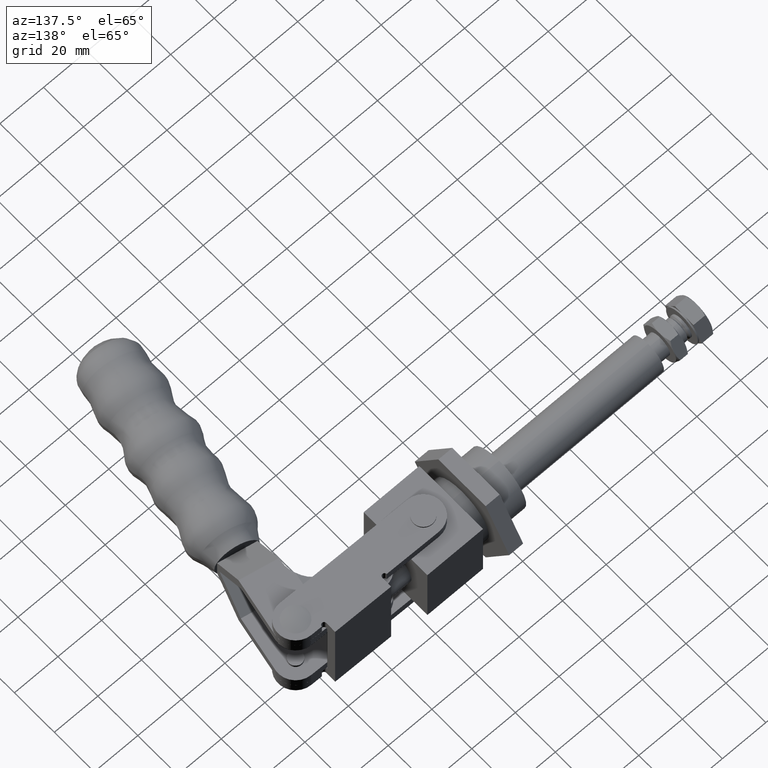
[diagram: clean part render]
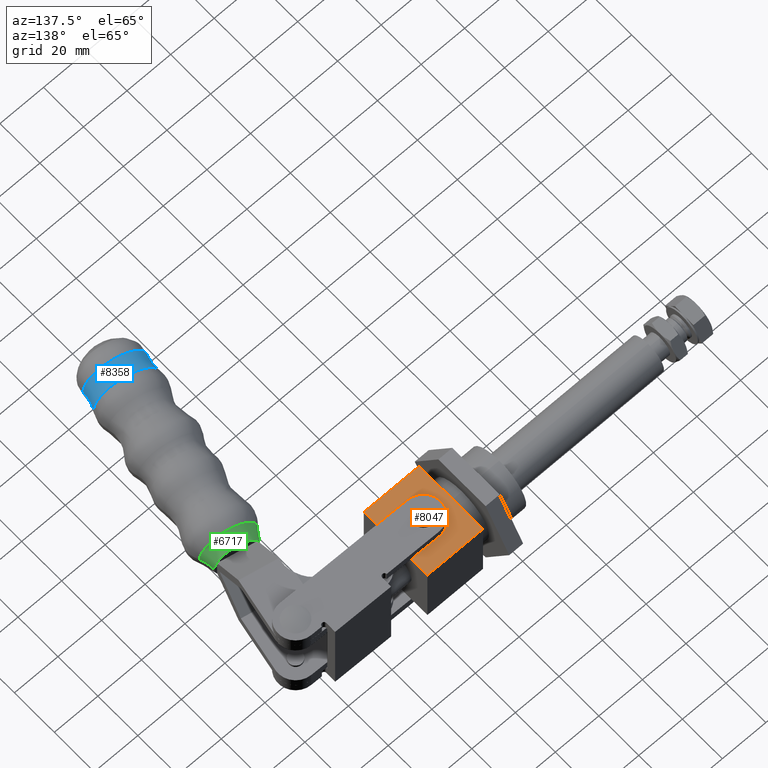
[diagram: same view with three faces highlighted in distinct colors, each labeled with its STEP entity id]
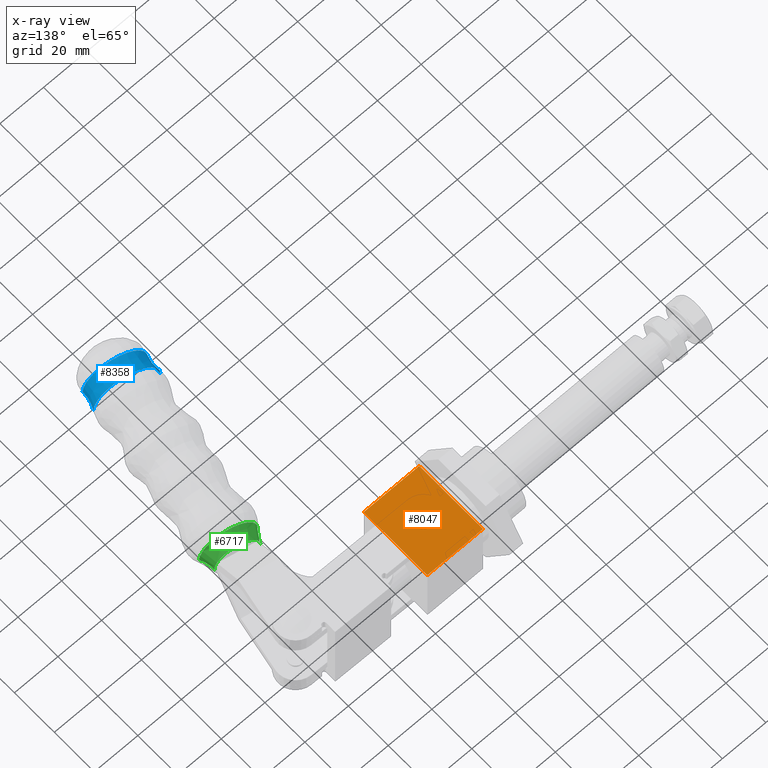
[diagram: x-ray of the same camera — body ghosted, the three highlighted faces saturated]
A machine part, auxiliary view with three faces highlighted in distinct colors.
The next image is the same camera in x-ray (body ghosted, the three faces saturated) — at least one of them is partly hidden behind the body in this view.
Their STEP definitions:

[orange] entity #8047 — the highlighted planar face has unit normal (0, -0, 1).
#409 = CARTESIAN_POINT ( 'NONE',  ( -25.50000000000000400, 15.94999999999999200, 15.95000000000001000 ) ) ;
#553 = ORIENTED_EDGE ( 'NONE', *, *, #9629, .F. ) ;
#647 = DIRECTION ( 'NONE',  ( 1.000000000000000000, 0.0000000000000000000, 0.0000000000000000000 ) ) ;
#879 = LINE ( 'NONE', #9358, #2626 ) ;
#1386 = CARTESIAN_POINT ( 'NONE',  ( -25.50000000000000400, 15.94999999999999200, 15.95000000000001000 ) ) ;
#1736 = DIRECTION ( 'NONE',  ( -1.000000000000000000, -0.0000000000000000000, -0.0000000000000000000 ) ) ;
#1810 = DIRECTION ( 'NONE',  ( 0.0000000000000000000, -1.000000000000000000, -2.175201850754617200E-016 ) ) ;
#1817 = CARTESIAN_POINT ( 'NONE',  ( -12.75000000000000200, -2.162506285152689300E-014, 15.95000000000000600 ) ) ;
#2062 = PLANE ( 'NONE',  #9275 ) ;
#2567 = DIRECTION ( 'NONE',  ( 0.0000000000000000000, 1.000000000000000000, 1.156482317317870900E-015 ) ) ;
#2626 = VECTOR ( 'NONE', #1810, 1000.000000000000000 ) ;
#2727 = VERTEX_POINT ( 'NONE', #409 ) ;
#2733 = VERTEX_POINT ( 'NONE', #4216 ) ;
#2740 = CARTESIAN_POINT ( 'NONE',  ( -12.75000000000000200, -2.162506285152689300E-014, 15.95000000000000600 ) ) ;
#2792 = FACE_BOUND ( 'NONE', #5771, .T. ) ;
#2812 = AXIS2_PLACEMENT_3D ( 'NONE', #1817, #7129, #2567 ) ;
#2874 = EDGE_LOOP ( 'NONE', ( #4905, #7217, #4133, #553 ) ) ;
#3046 = DIRECTION ( 'NONE',  ( 0.0000000000000000000, -1.000000000000000000, -0.0000000000000000000 ) ) ;
#3146 = EDGE_CURVE ( 'NONE', #7916, #9821, #7820, .T. ) ;
#3267 = EDGE_CURVE ( 'NONE', #9821, #7916, #9008, .T. ) ;
#3363 = EDGE_CURVE ( 'NONE', #2733, #4393, #6266, .T. ) ;
#3514 = DIRECTION ( 'NONE',  ( 0.0000000000000000000, 1.000000000000000000, 1.156482317317870900E-015 ) ) ;
#3519 = VECTOR ( 'NONE', #3046, 1000.000000000000000 ) ;
#3627 = DIRECTION ( 'NONE',  ( 0.0000000000000000000, -2.175201850754617200E-016, 1.000000000000000000 ) ) ;
#3648 = AXIS2_PLACEMENT_3D ( 'NONE', #2740, #8041, #3514 ) ;
#3767 = LINE ( 'NONE', #3837, #3519 ) ;
#3837 = CARTESIAN_POINT ( 'NONE',  ( 0.0000000000000000000, -15.95000000000000600, 15.95000000000001000 ) ) ;
#4000 = CARTESIAN_POINT ( 'NONE',  ( -25.50000000000000400, -15.95000000000000600, 15.95000000000000300 ) ) ;
#4133 = ORIENTED_EDGE ( 'NONE', *, *, #7769, .F. ) ;
#4216 = CARTESIAN_POINT ( 'NONE',  ( 0.0000000000000000000, -15.95000000000000600, 15.95000000000000600 ) ) ;
#4393 = VERTEX_POINT ( 'NONE', #8840 ) ;
#4820 = FACE_OUTER_BOUND ( 'NONE', #2874, .T. ) ;
#4905 = ORIENTED_EDGE ( 'NONE', *, *, #8842, .T. ) ;
#5694 = ORIENTED_EDGE ( 'NONE', *, *, #3146, .T. ) ;
#5771 = EDGE_LOOP ( 'NONE', ( #5694, #6323 ) ) ;
#5915 = LINE ( 'NONE', #1386, #7930 ) ;
#6266 = LINE ( 'NONE', #4000, #8053 ) ;
#6323 = ORIENTED_EDGE ( 'NONE', *, *, #3267, .T. ) ;
#7129 = DIRECTION ( 'NONE',  ( -0.0000000000000000000, 6.525605552263851300E-016, -1.000000000000000000 ) ) ;
#7217 = ORIENTED_EDGE ( 'NONE', *, *, #3363, .F. ) ;
#7608 = CARTESIAN_POINT ( 'NONE',  ( -12.75000000000000200, -3.000000000000023500, 15.95000000000000300 ) ) ;
#7769 = EDGE_CURVE ( 'NONE', #9579, #2733, #3767, .T. ) ;
#7820 = CIRCLE ( 'NONE', #2812, 3.000000000000001300 ) ;
#7916 = VERTEX_POINT ( 'NONE', #7952 ) ;
#7930 = VECTOR ( 'NONE', #647, 1000.000000000000000 ) ;
#7952 = CARTESIAN_POINT ( 'NONE',  ( -12.75000000000000200, 2.999999999999979600, 15.95000000000001000 ) ) ;
#8041 = DIRECTION ( 'NONE',  ( -0.0000000000000000000, 6.525605552263851300E-016, -1.000000000000000000 ) ) ;
#8047 = ADVANCED_FACE ( 'NONE', ( #4820, #2792 ), #2062, .T. ) ;
#8053 = VECTOR ( 'NONE', #1736, 1000.000000000000000 ) ;
#8153 = CARTESIAN_POINT ( 'NONE',  ( -25.50000000000000400, 15.94999999999999200, 15.95000000000001000 ) ) ;
#8840 = CARTESIAN_POINT ( 'NONE',  ( -25.50000000000000400, -15.95000000000000600, 15.95000000000000600 ) ) ;
#8842 = EDGE_CURVE ( 'NONE', #2727, #4393, #879, .T. ) ;
#8927 = DIRECTION ( 'NONE',  ( 0.0000000000000000000, -1.000000000000000000, -2.175201850754617200E-016 ) ) ;
#9008 = CIRCLE ( 'NONE', #3648, 3.000000000000001300 ) ;
#9275 = AXIS2_PLACEMENT_3D ( 'NONE', #8153, #3627, #8927 ) ;
#9358 = CARTESIAN_POINT ( 'NONE',  ( -25.50000000000000400, 15.94999999999999200, 15.95000000000001000 ) ) ;
#9579 = VERTEX_POINT ( 'NONE', #9648 ) ;
#9629 = EDGE_CURVE ( 'NONE', #2727, #9579, #5915, .T. ) ;
#9648 = CARTESIAN_POINT ( 'NONE',  ( 0.0000000000000000000, 15.94999999999999200, 15.95000000000001000 ) ) ;
#9821 = VERTEX_POINT ( 'NONE', #7608 ) ;

[blue] entity #8358 — the highlighted face is a freeform B-spline surface patch.
#206 = CARTESIAN_POINT ( 'NONE',  ( 35.46911566947526500, -113.5229180933284900, 24.86448865236712200 ) ) ;
#509 = DIRECTION ( 'NONE',  ( -6.220137079446978500E-018, 3.512798439105614500E-017, -1.000000000000000000 ) ) ;
#622 = AXIS2_PLACEMENT_3D ( 'NONE', #5046, #509, #5783 ) ;
#877 = DIRECTION ( 'NONE',  ( 0.1952332285523905900, 0.9807568437023573800, 3.323763365293902800E-017 ) ) ;
#930 = VERTEX_POINT ( 'NONE', #4926 ) ;
#942 = CARTESIAN_POINT ( 'NONE',  ( 36.80085528384377400, -111.1908452436706500, 1.791755705585239200E-014 ) ) ;
#968 = CARTESIAN_POINT ( 'NONE',  ( 11.08309825850661800, -108.6685436974225800, 1.653942283601692900E-014 ) ) ;
#1313 = CIRCLE ( 'NONE', #7622, 13.28305895534692400 ) ;
#1394 = CARTESIAN_POINT ( 'NONE',  ( 34.77747965890548400, -118.8038822449995100, 1.760170977026401500E-014 ) ) ;
#1713 = FACE_OUTER_BOUND ( 'NONE', #6026, .T. ) ;
#1720 = CARTESIAN_POINT ( 'NONE',  ( 34.77930805793372600, -116.1183486232500700, 24.52485014433250400 ) ) ;
#1978 = VERTEX_POINT ( 'NONE', #8165 ) ;
#1991 =( BOUNDED_SURFACE ( )  B_SPLINE_SURFACE ( 3, 3, ( 
 ( #942, #8523, #3990, #9270 ),
 ( #4749, #206, #5502, #968 ),
 ( #6247, #1720, #7029, #2465 ),
 ( #7775, #3239, #8557, #4014 ) ),
 .UNSPECIFIED., .F., .F., .F. ) 
 B_SPLINE_SURFACE_WITH_KNOTS ( ( 4, 4 ),
 ( 4, 4 ),
 ( 0.0000000000000000000, 1.000000000000000000 ),
 ( 0.0000000000000000000, 1.000000000000000000 ),
 .UNSPECIFIED. ) 
 GEOMETRIC_REPRESENTATION_ITEM ( )  RATIONAL_B_SPLINE_SURFACE ( (
 ( 1.000000000000000000, 0.3333333333333334300, 0.3333333333333334300, 1.000000000000000000),
 ( 0.9777487669915123600, 0.3259162556638375300, 0.3259162556638375300, 0.9777487669915123600),
 ( 0.9777487669915123600, 0.3259162556638375300, 0.3259162556638375300, 0.9777487669915123600),
 ( 1.000000000000000000, 0.3333333333333334300, 0.3333333333333334300, 1.000000000000000000) ) ) 
 REPRESENTATION_ITEM ( '' )  SURFACE ( )  );
#2465 = CARTESIAN_POINT ( 'NONE',  ( 10.72639343810488900, -111.3302829498084900, 1.644814005398585300E-014 ) ) ;
#2809 = ORIENTED_EDGE ( 'NONE', *, *, #7025, .T. ) ;
#2948 = CARTESIAN_POINT ( 'NONE',  ( 22.23856494812465500, -116.3078376675408000, 1.620168130468129300E-014 ) ) ;
#2958 = VERTEX_POINT ( 'NONE', #1394 ) ;
#3239 = CARTESIAN_POINT ( 'NONE',  ( 34.77747965890549200, -118.8038822449995100, 25.56987451333286600 ) ) ;
#3373 = EDGE_CURVE ( 'NONE', #1978, #2958, #9353, .T. ) ;
#3522 = CARTESIAN_POINT ( 'NONE',  ( 10.74595333232699400, -106.0042562738624000, 1.663511097070150900E-014 ) ) ;
#3572 = EDGE_CURVE ( 'NONE', #2958, #930, #3795, .T. ) ;
#3741 = DIRECTION ( 'NONE',  ( 0.9807568437023572700, -0.1952332285523900000, 1.095060881000970600E-016 ) ) ;
#3795 = CIRCLE ( 'NONE', #8824, 12.78493725666642600 ) ;
#3910 = ORIENTED_EDGE ( 'NONE', *, *, #5188, .F. ) ;
#3990 = CARTESIAN_POINT ( 'NONE',  ( 10.74595333232698700, -106.0042562738623800, 26.56611791069389700 ) ) ;
#4014 = CARTESIAN_POINT ( 'NONE',  ( 9.699650237343815800, -113.8117930900820500, 1.636735608796619800E-014 ) ) ;
#4062 = DIRECTION ( 'NONE',  ( -1.138879358587483000E-016, -1.121880954766726700E-017, 1.000000000000000000 ) ) ;
#4409 = ORIENTED_EDGE ( 'NONE', *, *, #3572, .F. ) ;
#4749 = CARTESIAN_POINT ( 'NONE',  ( 35.46911566947525800, -113.5229180933284900, 1.773972489891904400E-014 ) ) ;
#4926 = CARTESIAN_POINT ( 'NONE',  ( 9.699650237343826500, -113.8117930900820800, 1.636735608796619200E-014 ) ) ;
#5046 = CARTESIAN_POINT ( 'NONE',  ( -4.505680388612043800, -107.9342323265563100, 1.666218205447712200E-014 ) ) ;
#5188 = EDGE_CURVE ( 'NONE', #7021, #1978, #1313, .T. ) ;
#5397 = CARTESIAN_POINT ( 'NONE',  ( 23.77340430808538200, -108.5975507587665200, 1.646298123164939000E-014 ) ) ;
#5445 = AXIS2_PLACEMENT_3D ( 'NONE', #8608, #4062, #9351 ) ;
#5502 = CARTESIAN_POINT ( 'NONE',  ( 11.08309825850661800, -108.6685436974225800, 24.86448865236712200 ) ) ;
#5783 = DIRECTION ( 'NONE',  ( -0.9807568437023571600, 0.1952332285523912200, 1.295859181463825700E-017 ) ) ;
#6026 = EDGE_LOOP ( 'NONE', ( #3910, #2809, #4409, #9134 ) ) ;
#6146 = DIRECTION ( 'NONE',  ( 0.9807568437023571600, -0.1952332285523907500, 1.095060881000969100E-016 ) ) ;
#6247 = CARTESIAN_POINT ( 'NONE',  ( 34.77930805793373300, -116.1183486232501000, 1.763204649309152900E-014 ) ) ;
#7021 = VERTEX_POINT ( 'NONE', #3522 ) ;
#7025 = EDGE_CURVE ( 'NONE', #7021, #930, #8293, .T. ) ;
#7029 = CARTESIAN_POINT ( 'NONE',  ( 10.72639343810488600, -111.3302829498084800, 24.52485014433250800 ) ) ;
#7622 = AXIS2_PLACEMENT_3D ( 'NONE', #5397, #877, #6146 ) ;
#7775 = CARTESIAN_POINT ( 'NONE',  ( 34.77747965890549200, -118.8038822449995100, 1.760170977026401100E-014 ) ) ;
#8165 = CARTESIAN_POINT ( 'NONE',  ( 36.80085528384377400, -111.1908452436706500, 1.791755705585239600E-014 ) ) ;
#8267 = DIRECTION ( 'NONE',  ( -0.1952332285523905900, -0.9807568437023573800, -3.323763365293902800E-017 ) ) ;
#8293 = CIRCLE ( 'NONE', #622, 15.37326051043358200 ) ;
#8358 = ADVANCED_FACE ( 'NONE', ( #1713 ), #1991, .F. ) ;
#8523 = CARTESIAN_POINT ( 'NONE',  ( 36.80085528384378100, -111.1908452436706500, 26.56611791069388000 ) ) ;
#8557 = CARTESIAN_POINT ( 'NONE',  ( 9.699650237343815800, -113.8117930900820600, 25.56987451333287700 ) ) ;
#8608 = CARTESIAN_POINT ( 'NONE',  ( 50.15073660633257200, -118.8143488605860100, 1.935242084846577500E-014 ) ) ;
#8824 = AXIS2_PLACEMENT_3D ( 'NONE', #2948, #8267, #3741 ) ;
#9134 = ORIENTED_EDGE ( 'NONE', *, *, #3373, .F. ) ;
#9270 = CARTESIAN_POINT ( 'NONE',  ( 10.74595333232698700, -106.0042562738623800, 1.663511097070151200E-014 ) ) ;
#9351 = DIRECTION ( 'NONE',  ( 0.9807568437023572700, -0.1952332285523903100, 1.095060881000970700E-016 ) ) ;
#9353 = CIRCLE ( 'NONE', #5445, 15.37326051043358000 ) ;

[green] entity #6717 — the highlighted face is a freeform B-spline surface patch.
#17 = DIRECTION ( 'NONE',  ( 0.9807568437023571600, -0.1952332285523905300, 1.095060881000971000E-016 ) ) ;
#30 = CIRCLE ( 'NONE', #7532, 12.55576330521145700 ) ;
#87 = VERTEX_POINT ( 'NONE', #8917 ) ;
#556 = CARTESIAN_POINT ( 'NONE',  ( 46.76455173394884200, -39.78083271061264300, 1.985343720848291000E-014 ) ) ;
#617 = CARTESIAN_POINT ( 'NONE',  ( 46.76455173394884200, -39.78083271061263600, 18.22683027912956200 ) ) ;
#660 = CARTESIAN_POINT ( 'NONE',  ( 25.36218795968320100, -41.38551460748081500, 23.12762475185706300 ) ) ;
#673 = ORIENTED_EDGE ( 'NONE', *, *, #1681, .T. ) ;
#742 = DIRECTION ( 'NONE',  ( 0.9807568437023572700, -0.1952332285523908600, 0.0000000000000000000 ) ) ;
#926 =( BOUNDED_SURFACE ( )  B_SPLINE_SURFACE ( 3, 3, ( 
 ( #556, #617, #5891, #1370 ),
 ( #6670, #2119, #7426, #2885 ),
 ( #8189, #3657, #8954, #4422 ),
 ( #9721, #5182, #660, #5927 ) ),
 .UNSPECIFIED., .F., .F., .F. ) 
 B_SPLINE_SURFACE_WITH_KNOTS ( ( 4, 4 ),
 ( 4, 4 ),
 ( 0.0000000000000000000, 1.000000000000000000 ),
 ( 0.0000000000000000000, 1.000000000000000000 ),
 .UNSPECIFIED. ) 
 GEOMETRIC_REPRESENTATION_ITEM ( )  RATIONAL_B_SPLINE_SURFACE ( (
 ( 1.000000000000000000, 0.3333333333333334300, 0.3333333333333334300, 1.000000000000000000),
 ( 0.9790046407599890500, 0.3263348802533298000, 0.3263348802533298000, 0.9790046407599890500),
 ( 0.9790046407599890500, 0.3263348802533298000, 0.3263348802533298000, 0.9790046407599890500),
 ( 1.000000000000000000, 0.3333333333333334300, 0.3333333333333334300, 1.000000000000000000) ) ) 
 REPRESENTATION_ITEM ( '' )  SURFACE ( )  );
#936 = AXIS2_PLACEMENT_3D ( 'NONE', #9076, #4546, #17 ) ;
#952 = CIRCLE ( 'NONE', #936, 12.55576330521145700 ) ;
#1370 = CARTESIAN_POINT ( 'NONE',  ( 28.88846319869119100, -36.22234978894170600, 1.897355979414793300E-014 ) ) ;
#1434 = VERTEX_POINT ( 'NONE', #6327 ) ;
#1655 = CARTESIAN_POINT ( 'NONE',  ( 36.70347608666512000, -43.64315503200742800, 1.866427141195961500E-014 ) ) ;
#1681 = EDGE_CURVE ( 'NONE', #4418, #1434, #30, .T. ) ;
#1711 = DIRECTION ( 'NONE',  ( -6.220137079446953800E-018, 3.512798439105613900E-017, -1.000000000000000000 ) ) ;
#2114 = ORIENTED_EDGE ( 'NONE', *, *, #6899, .F. ) ;
#2119 = CARTESIAN_POINT ( 'NONE',  ( 46.66789122135261900, -41.90747639805433500, 18.86761238680011800 ) ) ;
#2220 = ORIENTED_EDGE ( 'NONE', *, *, #4038, .T. ) ;
#2402 = DIRECTION ( 'NONE',  ( 0.9807568437023572700, -0.1952332285523905600, 1.095060881000970100E-016 ) ) ;
#2856 = CARTESIAN_POINT ( 'NONE',  ( 46.76455173394884200, -39.78083271061264300, 1.985343720848291000E-014 ) ) ;
#2885 = CARTESIAN_POINT ( 'NONE',  ( 28.16335124867503800, -38.22389151670427100, 1.890775996330408200E-014 ) ) ;
#2970 = AXIS2_PLACEMENT_3D ( 'NONE', #9812, #5264, #742 ) ;
#3657 = CARTESIAN_POINT ( 'NONE',  ( 47.10378036371813700, -43.99121277379836000, 20.53624406591831800 ) ) ;
#4038 = EDGE_CURVE ( 'NONE', #6329, #4418, #6658, .T. ) ;
#4418 = VERTEX_POINT ( 'NONE', #5065 ) ;
#4422 = CARTESIAN_POINT ( 'NONE',  ( 26.96271845212684000, -39.98185554246926200, 1.885347433102359200E-014 ) ) ;
#4546 = DIRECTION ( 'NONE',  ( -1.138879358587483300E-016, -1.121880954766726100E-017, 1.000000000000000000 ) ) ;
#5065 = CARTESIAN_POINT ( 'NONE',  ( 28.88846319869119100, -36.22234978894170600, 1.897355979414793300E-014 ) ) ;
#5182 = CARTESIAN_POINT ( 'NONE',  ( 48.04476421364702100, -45.90079545653404100, 23.12762475185703800 ) ) ;
#5264 = DIRECTION ( 'NONE',  ( -0.1952332285523905900, -0.9807568437023573800, -3.323763365293902800E-017 ) ) ;
#5805 = CIRCLE ( 'NONE', #7082, 11.56381237592851000 ) ;
#5891 = CARTESIAN_POINT ( 'NONE',  ( 28.88846319869119100, -36.22234978894170600, 18.22683027912957200 ) ) ;
#5927 = CARTESIAN_POINT ( 'NONE',  ( 25.36218795968320100, -41.38551460748081500, 1.881412213636033500E-014 ) ) ;
#6237 = CARTESIAN_POINT ( 'NONE',  ( 17.08349296929073800, -31.94568402465013800, 1.919721897540739200E-014 ) ) ;
#6327 = CARTESIAN_POINT ( 'NONE',  ( 25.36218795968321500, -41.38551460748081500, 1.881412213636033200E-014 ) ) ;
#6329 = VERTEX_POINT ( 'NONE', #2856 ) ;
#6433 = ORIENTED_EDGE ( 'NONE', *, *, #9767, .F. ) ;
#6658 = CIRCLE ( 'NONE', #2970, 9.113415139564770200 ) ;
#6670 = CARTESIAN_POINT ( 'NONE',  ( 46.66789122135261900, -41.90747639805434200, 1.981857033171912200E-014 ) ) ;
#6717 = ADVANCED_FACE ( 'NONE', ( #7015 ), #926, .F. ) ;
#6899 = EDGE_CURVE ( 'NONE', #87, #1434, #5805, .T. ) ;
#6960 = DIRECTION ( 'NONE',  ( -0.1952332285523905900, -0.9807568437023573800, -3.323763365293902800E-017 ) ) ;
#7015 = FACE_OUTER_BOUND ( 'NONE', #7632, .T. ) ;
#7016 = DIRECTION ( 'NONE',  ( -0.9807568437023573800, 0.1952332285523905300, 1.295859181463838500E-017 ) ) ;
#7082 = AXIS2_PLACEMENT_3D ( 'NONE', #1655, #6960, #2402 ) ;
#7426 = CARTESIAN_POINT ( 'NONE',  ( 28.16335124867504200, -38.22389151670427100, 18.86761238680014300 ) ) ;
#7532 = AXIS2_PLACEMENT_3D ( 'NONE', #6237, #1711, #7016 ) ;
#7632 = EDGE_LOOP ( 'NONE', ( #2220, #673, #2114, #6433 ) ) ;
#8189 = CARTESIAN_POINT ( 'NONE',  ( 47.10378036371812300, -43.99121277379835200, 1.984483580485935200E-014 ) ) ;
#8917 = CARTESIAN_POINT ( 'NONE',  ( 48.04476421364702100, -45.90079545653404100, 1.993057926877103800E-014 ) ) ;
#8954 = CARTESIAN_POINT ( 'NONE',  ( 26.96271845212685000, -39.98185554246926900, 20.53624406591831100 ) ) ;
#9076 = CARTESIAN_POINT ( 'NONE',  ( 59.30736564113395600, -40.35093047961218100, 2.127551657593866800E-014 ) ) ;
#9721 = CARTESIAN_POINT ( 'NONE',  ( 48.04476421364702100, -45.90079545653404100, 1.993057926877103500E-014 ) ) ;
#9767 = EDGE_CURVE ( 'NONE', #6329, #87, #952, .T. ) ;
#9812 = CARTESIAN_POINT ( 'NONE',  ( 37.82650746632001700, -38.00159124977717100, 1.885546276731697300E-014 ) ) ;